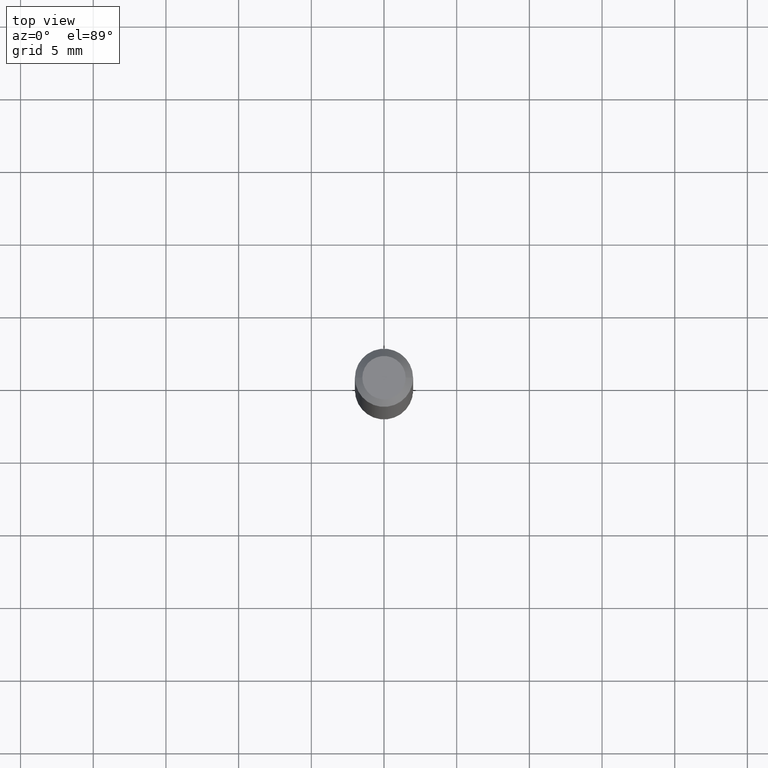
[diagram: clean part render]
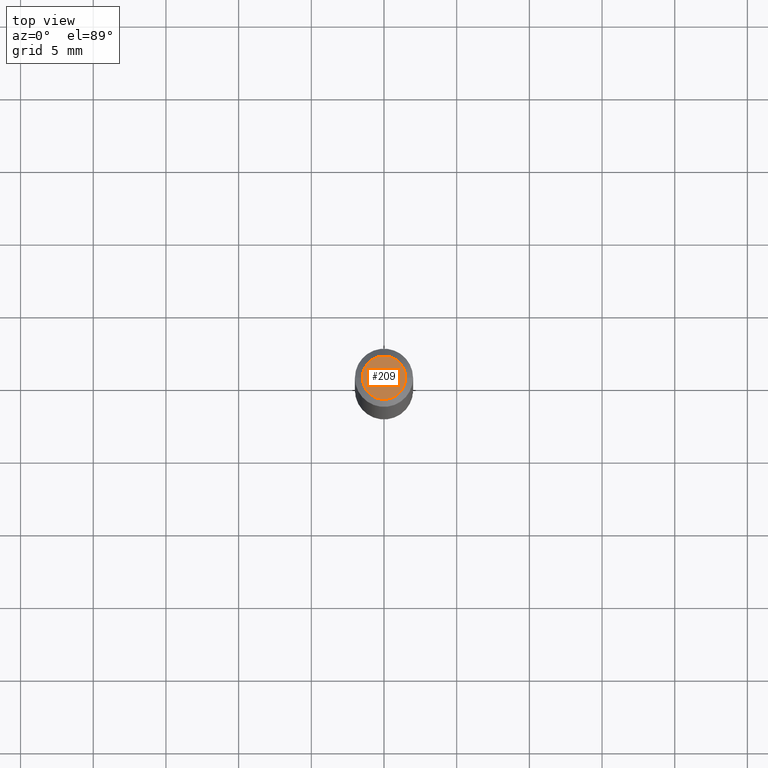
[diagram: same view with one face highlighted and labeled with its STEP entity id]
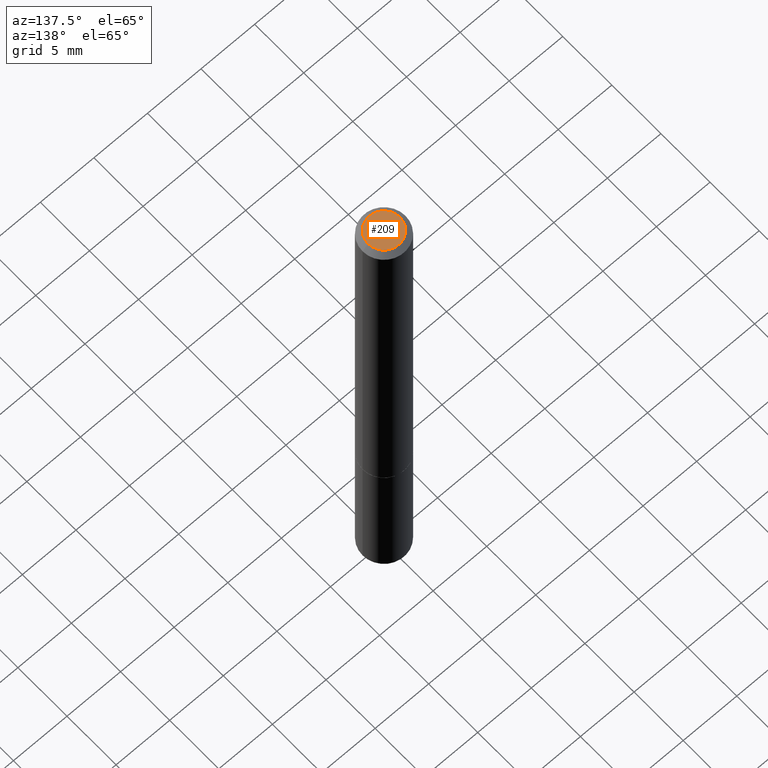
[diagram: same view with one face highlighted and labeled with its STEP entity id]
A machine part, top view. The second image highlights one B-rep face of the part: STEP entity #209.
A second angle (auxiliary view) of the same face is appended — the face is thin or edge-on in the first view.
In plain terms, the highlighted planar face has unit normal (0, -0, -1).
Its self-contained STEP definition (entity closure, byte-faithful):
#4 = ORIENTED_EDGE ( 'NONE', *, *, #142, .T. ) ;
#35 = VERTEX_POINT ( 'NONE', #125 ) ;
#67 = ORIENTED_EDGE ( 'NONE', *, *, #321, .T. ) ;
#70 = CIRCLE ( 'NONE', #288, 0.05874999999999985095 ) ;
#79 = CARTESIAN_POINT ( 'NONE',  ( 4.102490573140670944E-16, 0.05874999999999985095, -2.051245286570342868E-16 ) ) ;
#102 = DIRECTION ( 'NONE',  ( -2.445468806185136597E-29, 3.491481338843145583E-15, 1.000000000000000000 ) ) ;
#105 = DIRECTION ( 'NONE',  ( 2.438088387897960049E-29, -3.491481338843145188E-15, -1.000000000000000000 ) ) ;
#122 = CIRCLE ( 'NONE', #225, 0.05874999999999985095 ) ;
#125 = CARTESIAN_POINT ( 'NONE',  ( 0.05874999999999985095, -5.065740507352233199E-16, 3.205406768517977340E-30 ) ) ;
#129 = CARTESIAN_POINT ( 'NONE',  ( 0.000000000000000000, 0.000000000000000000, 0.000000000000000000 ) ) ;
#132 = FACE_OUTER_BOUND ( 'NONE', #248, .T. ) ;
#133 = CARTESIAN_POINT ( 'NONE',  ( -0.05874999999999985095, 4.451638707024982998E-16, -2.990994270918719790E-30 ) ) ;
#140 = CARTESIAN_POINT ( 'NONE',  ( 0.000000000000000000, 0.000000000000000000, 0.000000000000000000 ) ) ;
#142 = EDGE_CURVE ( 'NONE', #281, #35, #122, .T. ) ;
#195 = DIRECTION ( 'NONE',  ( -2.445468806185136597E-29, 3.491481338843145583E-15, 1.000000000000000000 ) ) ;
#209 = ADVANCED_FACE ( 'NONE', ( #132 ), #354, .F. ) ;
#225 = AXIS2_PLACEMENT_3D ( 'NONE', #129, #102, #295 ) ;
#239 = DIRECTION ( 'NONE',  ( -1.000000000000000000, 6.982962677686265922E-15, -4.876176775795935793E-29 ) ) ;
#248 = EDGE_LOOP ( 'NONE', ( #4, #67 ) ) ;
#269 = AXIS2_PLACEMENT_3D ( 'NONE', #79, #105, #239 ) ;
#273 = DIRECTION ( 'NONE',  ( 1.000000000000000000, -6.982962677686266711E-15, 4.876176775795935793E-29 ) ) ;
#281 = VERTEX_POINT ( 'NONE', #133 ) ;
#288 = AXIS2_PLACEMENT_3D ( 'NONE', #140, #195, #273 ) ;
#295 = DIRECTION ( 'NONE',  ( 1.000000000000000000, -6.982962677686266711E-15, 4.876176775795935793E-29 ) ) ;
#321 = EDGE_CURVE ( 'NONE', #35, #281, #70, .T. ) ;
#354 = PLANE ( 'NONE',  #269 ) ;